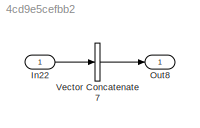
MODEL slx_4cd9e5cefbb2
KIND model
CONFIG AbsTol = auto
CONFIG EnableMultiTasking = on
CONFIG FixedStep = 0.1
CONFIG MaxStep = 1
CONFIG MinStep = auto
CONFIG RelTol = 1e-3
CONFIG SampleTimeConstraint = Unconstrained
CONFIG Solver = FixedStepAuto
CONFIG SolverName = FixedStepAuto
CONFIG StartTime = 0.0
CONFIG StopTime = 0
BLOCK [Inport] In22
  IconDisplay = Port number
  OutDataTypeStr = double
  PortDimensions = [3 2]
BLOCK [Outport] Out8
  IconDisplay = Port number
BLOCK [Concatenate] Vector Concatenate7
  ConcatenateDimension = 2
  Mode = Multidimensional array
  NumInputs = 1
  Ports = [1, 1]
LINE In22:1 -> Vector Concatenate7:1
LINE Vector Concatenate7:1 -> Out8:1
